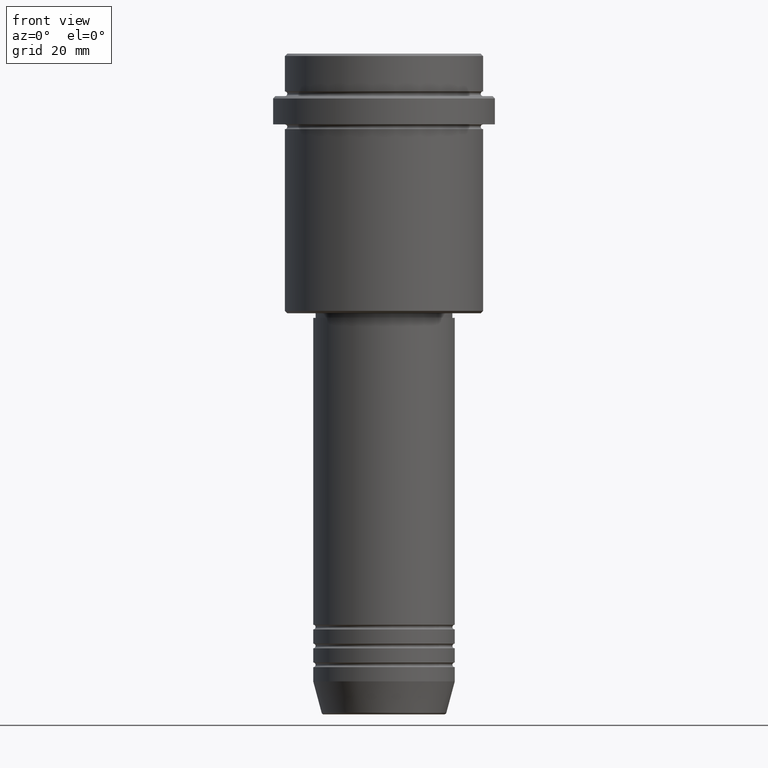
[diagram: clean part render]
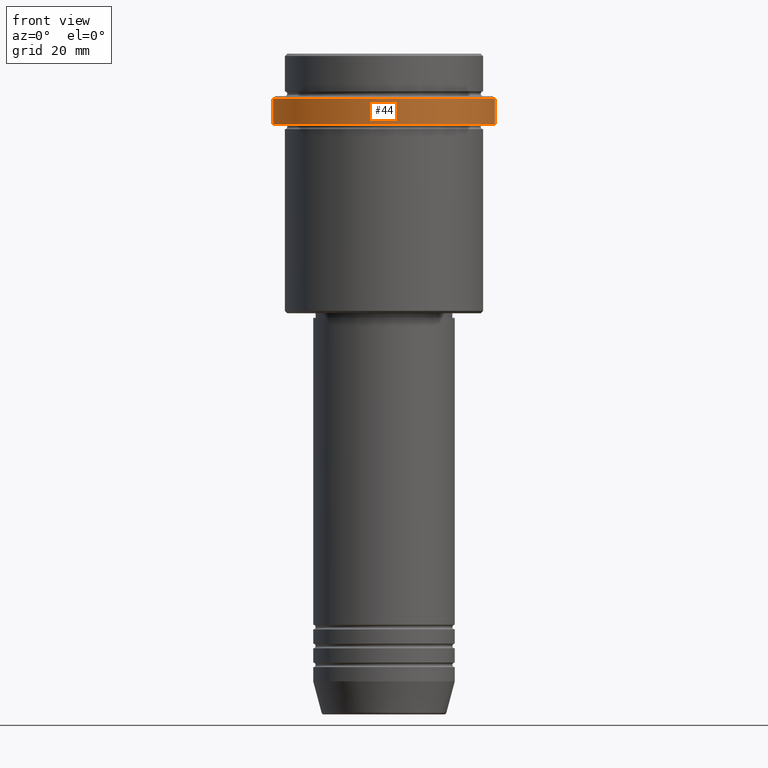
[diagram: same view with one face highlighted and labeled with its STEP entity id]
A machine part, front view. The second image highlights one B-rep face of the part: STEP entity #44.
In plain terms, the highlighted cylindrical surface (partial cylindrical patch) has radius 23.5 mm, axis along (-0, -0, 1).
Its self-contained STEP definition (entity closure, byte-faithful):
#44 = ADVANCED_FACE ( 'NONE', ( #641 ), #344, .T. ) ;
#82 = CIRCLE ( 'NONE', #1178, 23.50000000000000355 ) ;
#95 = CARTESIAN_POINT ( 'NONE',  ( 0.000000000000000000, 0.000000000000000000, -15.00000000000000000 ) ) ;
#113 = DIRECTION ( 'NONE',  ( 0.000000000000000000, 0.000000000000000000, -1.000000000000000000 ) ) ;
#124 = CIRCLE ( 'NONE', #1218, 23.50000000000000000 ) ;
#167 = ORIENTED_EDGE ( 'NONE', *, *, #1185, .T. ) ;
#168 = VERTEX_POINT ( 'NONE', #813 ) ;
#245 = CARTESIAN_POINT ( 'NONE',  ( -23.50000000000000000, 2.877919977996280320E-15, -9.499999999999985789 ) ) ;
#344 = CYLINDRICAL_SURFACE ( 'NONE', #1136, 23.50000000000000000 ) ;
#381 = DIRECTION ( 'NONE',  ( -0.000000000000000000, -0.000000000000000000, 1.000000000000000000 ) ) ;
#405 = EDGE_CURVE ( 'NONE', #1320, #975, #124, .T. ) ;
#464 = LINE ( 'NONE', #1050, #747 ) ;
#550 = DIRECTION ( 'NONE',  ( 1.000000000000000000, 0.000000000000000000, 0.000000000000000000 ) ) ;
#641 = FACE_OUTER_BOUND ( 'NONE', #1280, .T. ) ;
#739 = DIRECTION ( 'NONE',  ( 1.000000000000000000, 0.000000000000000000, 0.000000000000000000 ) ) ;
#747 = VECTOR ( 'NONE', #381, 1000.000000000000000 ) ;
#773 = CARTESIAN_POINT ( 'NONE',  ( 0.000000000000000000, 0.000000000000000000, -9.499999999999985789 ) ) ;
#774 = CARTESIAN_POINT ( 'NONE',  ( 0.000000000000000000, 0.000000000000000000, 0.000000000000000000 ) ) ;
#777 = CARTESIAN_POINT ( 'NONE',  ( -23.50000000000000000, 2.877919977996280320E-15, 0.000000000000000000 ) ) ;
#794 = LINE ( 'NONE', #777, #1343 ) ;
#813 = CARTESIAN_POINT ( 'NONE',  ( -23.50000000000000711, 2.877919977996281109E-15, -15.00000000000000000 ) ) ;
#895 = DIRECTION ( 'NONE',  ( -0.000000000000000000, -0.000000000000000000, 1.000000000000000000 ) ) ;
#917 = VERTEX_POINT ( 'NONE', #979 ) ;
#975 = VERTEX_POINT ( 'NONE', #245 ) ;
#979 = CARTESIAN_POINT ( 'NONE',  ( 23.50000000000000355, 0.000000000000000000, -15.00000000000000000 ) ) ;
#1000 = EDGE_CURVE ( 'NONE', #917, #1320, #464, .T. ) ;
#1031 = EDGE_CURVE ( 'NONE', #168, #975, #794, .T. ) ;
#1050 = CARTESIAN_POINT ( 'NONE',  ( 23.50000000000000000, 0.000000000000000000, 0.000000000000000000 ) ) ;
#1059 = DIRECTION ( 'NONE',  ( -0.000000000000000000, -0.000000000000000000, 1.000000000000000000 ) ) ;
#1075 = ORIENTED_EDGE ( 'NONE', *, *, #1000, .T. ) ;
#1136 = AXIS2_PLACEMENT_3D ( 'NONE', #774, #1303, #1206 ) ;
#1178 = AXIS2_PLACEMENT_3D ( 'NONE', #95, #1059, #739 ) ;
#1185 = EDGE_CURVE ( 'NONE', #168, #917, #82, .T. ) ;
#1206 = DIRECTION ( 'NONE',  ( 1.000000000000000000, 0.000000000000000000, 0.000000000000000000 ) ) ;
#1213 = ORIENTED_EDGE ( 'NONE', *, *, #1031, .F. ) ;
#1218 = AXIS2_PLACEMENT_3D ( 'NONE', #773, #113, #550 ) ;
#1280 = EDGE_LOOP ( 'NONE', ( #1213, #167, #1075, #1375 ) ) ;
#1303 = DIRECTION ( 'NONE',  ( -0.000000000000000000, -0.000000000000000000, 1.000000000000000000 ) ) ;
#1320 = VERTEX_POINT ( 'NONE', #1334 ) ;
#1334 = CARTESIAN_POINT ( 'NONE',  ( 23.50000000000000000, 0.000000000000000000, -9.499999999999985789 ) ) ;
#1343 = VECTOR ( 'NONE', #895, 1000.000000000000000 ) ;
#1375 = ORIENTED_EDGE ( 'NONE', *, *, #405, .T. ) ;